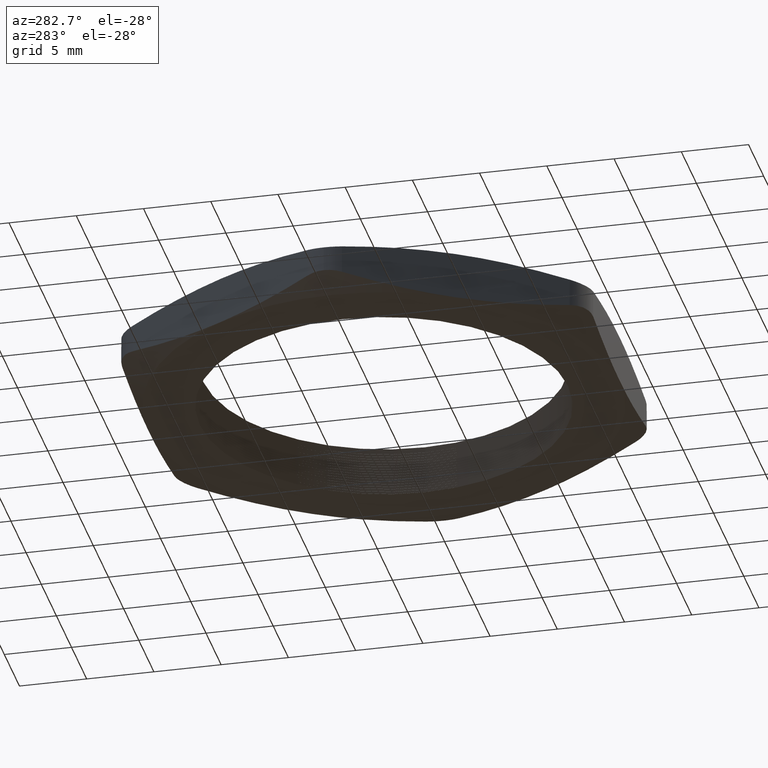
[diagram: clean part render]
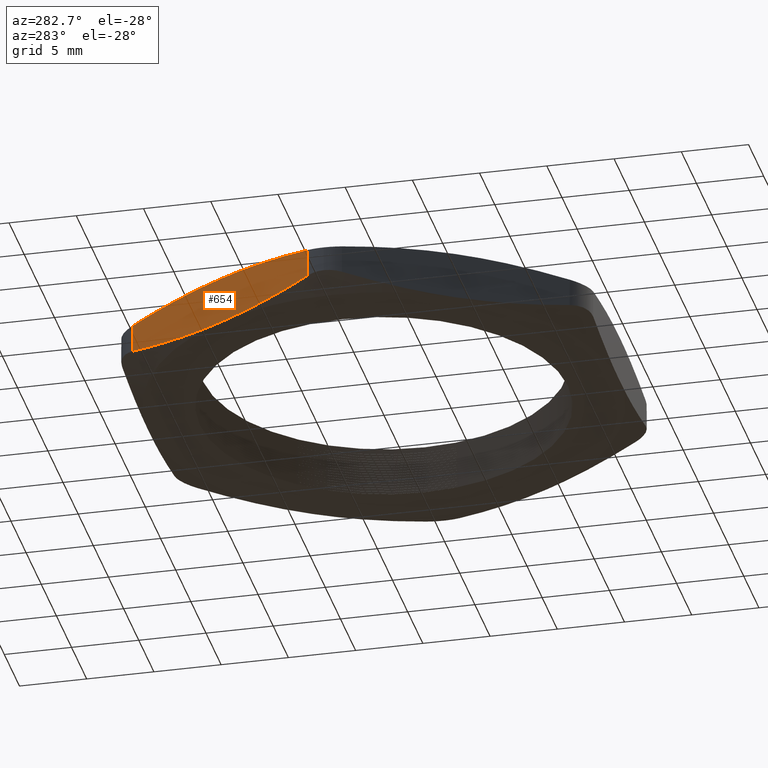
[diagram: same view with one face highlighted and labeled with its STEP entity id]
A machine part, auxiliary view. The second image highlights one B-rep face of the part: STEP entity #654.
In plain terms, the highlighted planar face has unit normal (0.866, -0.5, 0).
Its self-contained STEP definition (entity closure, byte-faithful):
#262 = EDGE_LOOP ( 'NONE', ( #727, #691, #728, #695, #689, #768 ) ) ;
#611 = VERTEX_POINT ( 'NONE', #1930 ) ;
#646 = VERTEX_POINT ( 'NONE', #1984 ) ;
#648 = EDGE_CURVE ( 'NONE', #646, #611, #2034, .T. ) ;
#650 = EDGE_CURVE ( 'NONE', #770, #771, #2026, .T. ) ;
#654 = ADVANCED_FACE ( 'NONE', ( #2071 ), #2070, .F. ) ;
#689 = ORIENTED_EDGE ( 'NONE', *, *, #767, .T. ) ;
#690 = VERTEX_POINT ( 'NONE', #2122 ) ;
#691 = ORIENTED_EDGE ( 'NONE', *, *, #716, .T. ) ;
#695 = ORIENTED_EDGE ( 'NONE', *, *, #775, .F. ) ;
#696 = VERTEX_POINT ( 'NONE', #2119 ) ;
#716 = EDGE_CURVE ( 'NONE', #646, #771, #2170, .T. ) ;
#727 = ORIENTED_EDGE ( 'NONE', *, *, #648, .F. ) ;
#728 = ORIENTED_EDGE ( 'NONE', *, *, #650, .F. ) ;
#767 = EDGE_CURVE ( 'NONE', #696, #690, #2307, .T. ) ;
#768 = ORIENTED_EDGE ( 'NONE', *, *, #769, .F. ) ;
#769 = EDGE_CURVE ( 'NONE', #611, #690, #2303, .T. ) ;
#770 = VERTEX_POINT ( 'NONE', #2302 ) ;
#771 = VERTEX_POINT ( 'NONE', #2301 ) ;
#775 = EDGE_CURVE ( 'NONE', #696, #770, #2341, .T. ) ;
#1930 = CARTESIAN_POINT ( 'NONE',  ( -0.5975575286112626600, 0.3450000000000000800, 0.0000000000000000000 ) ) ;
#1984 = CARTESIAN_POINT ( 'NONE',  ( -0.7678758580222022600, 0.05000000000000001000, 0.02893636282500409300 ) ) ;
#2018 = CARTESIAN_POINT ( 'NONE',  ( -0.7678758580222022600, 0.05000000000000000300, 0.1110636371749958700 ) ) ;
#2019 = CARTESIAN_POINT ( 'NONE',  ( -0.7394894697870457700, 0.09916666666666658400, 0.1202108257302712700 ) ) ;
#2020 = CARTESIAN_POINT ( 'NONE',  ( -0.7111030815518890600, 0.1483333333333332900, 0.1275103342379989800 ) ) ;
#2021 = CARTESIAN_POINT ( 'NONE',  ( -0.6543303050815756400, 0.2466666666666666500, 0.1374142085365006900 ) ) ;
#2022 = CARTESIAN_POINT ( 'NONE',  ( -0.6259439168464191500, 0.2958333333333332300, 0.1399999999999999300 ) ) ;
#2023 = CARTESIAN_POINT ( 'NONE',  ( -0.5975575286112626600, 0.3450000000000000300, 0.1400000000000000100 ) ) ;
#2026 = B_SPLINE_CURVE_WITH_KNOTS ( 'NONE', 3,
 ( #2023, #2022, #2021, #2020, #2019, #2018 ),
 .UNSPECIFIED., .F., .F.,
 ( 4, 2, 4 ),
 ( 0.008652402074183406000, 0.01297848764122127300, 0.01730457320825913900 ),
 .UNSPECIFIED. ) ;
#2027 = CARTESIAN_POINT ( 'NONE',  ( -0.5975575286112626600, 0.3450000000000000800, 0.0000000000000000000 ) ) ;
#2028 = CARTESIAN_POINT ( 'NONE',  ( -0.6259439168464191500, 0.2958333333333333900, -1.420614313111543000E-017 ) ) ;
#2029 = CARTESIAN_POINT ( 'NONE',  ( -0.6543303050815757500, 0.2466666666666665900, 0.002585791463499278500 ) ) ;
#2030 = CARTESIAN_POINT ( 'NONE',  ( -0.7111030815518889500, 0.1483333333333333700, 0.01248966576200097000 ) ) ;
#2031 = CARTESIAN_POINT ( 'NONE',  ( -0.7394894697870455500, 0.09916666666666662500, 0.01978917426972866300 ) ) ;
#2032 = CARTESIAN_POINT ( 'NONE',  ( -0.7678758580222022600, 0.05000000000000001000, 0.02893636282500409300 ) ) ;
#2034 = B_SPLINE_CURVE_WITH_KNOTS ( 'NONE', 3,
 ( #2032, #2031, #2030, #2029, #2028, #2027 ),
 .UNSPECIFIED., .F., .F.,
 ( 4, 2, 4 ),
 ( 2.309401076833800100E-007, 0.004326316507145549700, 0.008652402074183416400 ),
 .UNSPECIFIED. ) ;
#2066 = DIRECTION ( 'NONE',  ( 0.5000000000000000000, 0.8660254037844386000, 0.0000000000000000000 ) ) ;
#2067 = DIRECTION ( 'NONE',  ( 0.8660254037844387100, -0.5000000000000001100, 0.0000000000000000000 ) ) ;
#2068 = CARTESIAN_POINT ( 'NONE',  ( -0.3983716857408417500, 0.6900000000000000600, 0.1400000000000000100 ) ) ;
#2069 = AXIS2_PLACEMENT_3D ( 'NONE', #2068, #2067, #2066 ) ;
#2070 = PLANE ( 'NONE',  #2069 ) ;
#2071 = FACE_OUTER_BOUND ( 'NONE', #262, .T. ) ;
#2119 = CARTESIAN_POINT ( 'NONE',  ( -0.4272391992003230500, 0.6400000000000000100, 0.1110636371749958300 ) ) ;
#2122 = CARTESIAN_POINT ( 'NONE',  ( -0.4272391992003230500, 0.6400000000000000100, 0.02893636282500411400 ) ) ;
#2167 = DIRECTION ( 'NONE',  ( 0.0000000000000000000, 0.0000000000000000000, 1.000000000000000000 ) ) ;
#2168 = VECTOR ( 'NONE', #2167, 39.37007874015748100 ) ;
#2169 = CARTESIAN_POINT ( 'NONE',  ( -0.7678758580222022600, 0.05000000000000001000, 0.1400000000000000100 ) ) ;
#2170 = LINE ( 'NONE', #2169, #2168 ) ;
#2294 = CARTESIAN_POINT ( 'NONE',  ( -0.4272391992003230500, 0.6400000000000000100, 0.02893636282500411400 ) ) ;
#2295 = CARTESIAN_POINT ( 'NONE',  ( -0.4556255874354797100, 0.5908333333333333200, 0.01978917426972866600 ) ) ;
#2296 = CARTESIAN_POINT ( 'NONE',  ( -0.4840119756706362500, 0.5416666666666666300, 0.01248966576200100100 ) ) ;
#2297 = CARTESIAN_POINT ( 'NONE',  ( -0.5407847521409495700, 0.4433333333333334100, 0.002585791463499314500 ) ) ;
#2298 = CARTESIAN_POINT ( 'NONE',  ( -0.5691711403761059400, 0.3941666666666667200, -1.050454245610647700E-017 ) ) ;
#2299 = CARTESIAN_POINT ( 'NONE',  ( -0.5975575286112626600, 0.3450000000000000800, 0.0000000000000000000 ) ) ;
#2301 = CARTESIAN_POINT ( 'NONE',  ( -0.7678758580222022600, 0.05000000000000000300, 0.1110636371749958700 ) ) ;
#2302 = CARTESIAN_POINT ( 'NONE',  ( -0.5975575286112626600, 0.3450000000000000300, 0.1400000000000000100 ) ) ;
#2303 = B_SPLINE_CURVE_WITH_KNOTS ( 'NONE', 3,
 ( #2299, #2298, #2297, #2296, #2295, #2294 ),
 .UNSPECIFIED., .F., .F.,
 ( 4, 2, 4 ),
 ( 0.008652402074183416400, 0.01297848764122128100, 0.01730457320825914600 ),
 .UNSPECIFIED. ) ;
#2304 = DIRECTION ( 'NONE',  ( 0.0000000000000000000, 0.0000000000000000000, -1.000000000000000000 ) ) ;
#2305 = VECTOR ( 'NONE', #2304, 39.37007874015748100 ) ;
#2306 = CARTESIAN_POINT ( 'NONE',  ( -0.4272391992003229900, 0.6400000000000000100, 0.1400000000000000100 ) ) ;
#2307 = LINE ( 'NONE', #2306, #2305 ) ;
#2334 = CARTESIAN_POINT ( 'NONE',  ( -0.5975575286112626600, 0.3450000000000000300, 0.1400000000000000100 ) ) ;
#2335 = CARTESIAN_POINT ( 'NONE',  ( -0.5691711403761060600, 0.3941666666666666700, 0.1399999999999999300 ) ) ;
#2336 = CARTESIAN_POINT ( 'NONE',  ( -0.5407847521409494500, 0.4433333333333333600, 0.1374142085365006900 ) ) ;
#2337 = CARTESIAN_POINT ( 'NONE',  ( -0.4840119756706363100, 0.5416666666666667400, 0.1275103342379989600 ) ) ;
#2338 = CARTESIAN_POINT ( 'NONE',  ( -0.4556255874354794800, 0.5908333333333331000, 0.1202108257302712700 ) ) ;
#2339 = CARTESIAN_POINT ( 'NONE',  ( -0.4272391992003230500, 0.6400000000000000100, 0.1110636371749958300 ) ) ;
#2341 = B_SPLINE_CURVE_WITH_KNOTS ( 'NONE', 3,
 ( #2339, #2338, #2337, #2336, #2335, #2334 ),
 .UNSPECIFIED., .F., .F.,
 ( 4, 2, 4 ),
 ( 2.309401076748848800E-007, 0.004326316507145541000, 0.008652402074183406000 ),
 .UNSPECIFIED. ) ;